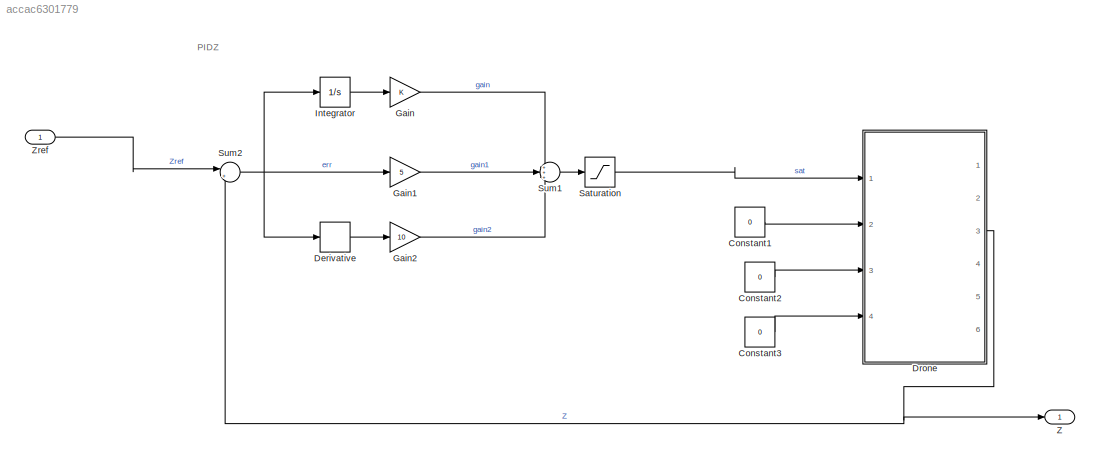
MODEL slx_accac6301779
KIND model
CONFIG AbsTol = auto
CONFIG EnableMultiTasking = on
CONFIG FixedStep = 0.01
CONFIG MaxStep = auto
CONFIG MinStep = auto
CONFIG RelTol = 1e-3
CONFIG SampleTimeConstraint = Unconstrained
CONFIG Solver = FixedStepAuto
CONFIG SolverName = FixedStepAuto
CONFIG StartTime = 0.0
CONFIG StopTime = 30.0
BLOCK [Constant] Constant1
  Value = 0
BLOCK [Constant] Constant2
  Value = 0
BLOCK [Constant] Constant3
  Value = 0
BLOCK [Derivative] Derivative
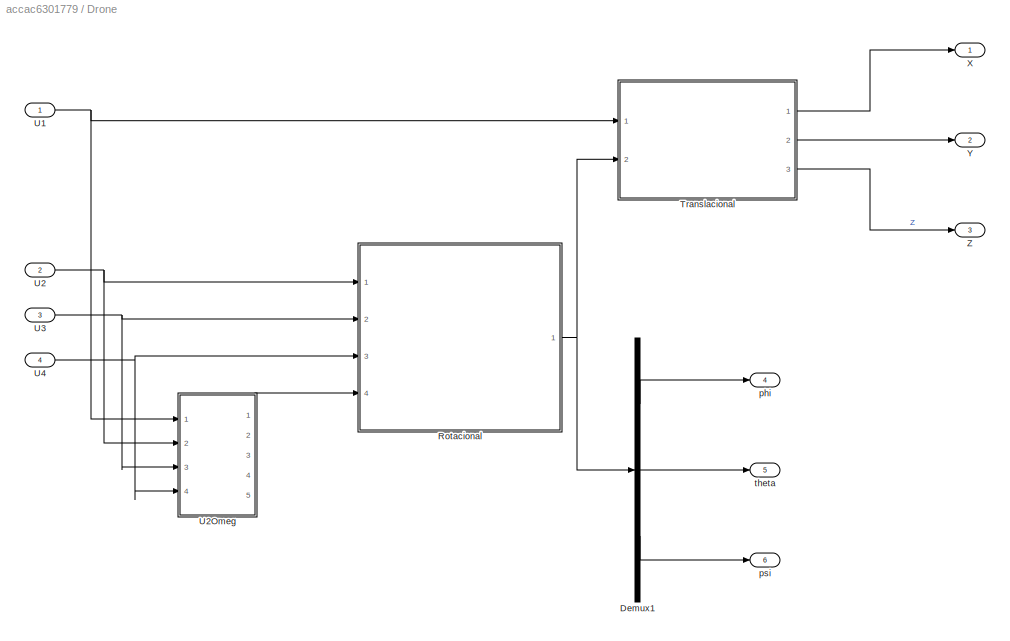
BLOCK [SubSystem] Drone
  Ports = [4, 6]
  RequestExecContextInheritance = off
BLOCK [Demux] Drone/Demux1
  DisplayOption = bar
  Outputs = 3
  Ports = [1, 3]
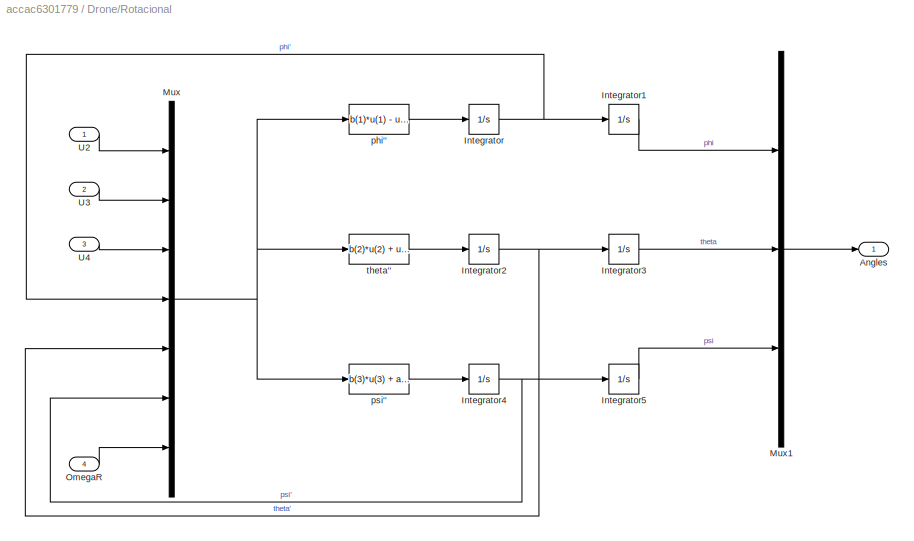
BLOCK [SubSystem] Drone/Rotacional
  Ports = [4, 1]
  RequestExecContextInheritance = off
BLOCK [Outport] Drone/Rotacional/Angles
  IconDisplay = Port number
BLOCK [Integrator] Drone/Rotacional/Integrator
  Ports = [1, 1]
BLOCK [Integrator] Drone/Rotacional/Integrator1
  Ports = [1, 1]
BLOCK [Integrator] Drone/Rotacional/Integrator2
  Ports = [1, 1]
BLOCK [Integrator] Drone/Rotacional/Integrator3
  Ports = [1, 1]
BLOCK [Integrator] Drone/Rotacional/Integrator4
  Ports = [1, 1]
BLOCK [Integrator] Drone/Rotacional/Integrator5
  Ports = [1, 1]
BLOCK [Mux] Drone/Rotacional/Mux
  DisplayOption = bar
  Inputs = 7
  Ports = [7, 1]
BLOCK [Mux] Drone/Rotacional/Mux1
  DisplayOption = bar
  Inputs = 3
  Ports = [3, 1]
BLOCK [Inport] Drone/Rotacional/OmegaR
  IconDisplay = Port number
  Port = 4
BLOCK [Inport] Drone/Rotacional/U2
  IconDisplay = Port number
BLOCK [Inport] Drone/Rotacional/U3
  IconDisplay = Port number
  Port = 2
BLOCK [Inport] Drone/Rotacional/U4
  IconDisplay = Port number
  Port = 3
BLOCK [Fcn] Drone/Rotacional/phi''
  Expr = b(1)*u(1) - u(5)*u(7)*a(2) + a(1)*u(5)*u(6)
BLOCK [Fcn] Drone/Rotacional/psi''
  Expr = b(3)*u(3) + a(5)*u(4)*u(5)
BLOCK [Fcn] Drone/Rotacional/theta''
  Expr = b(2)*u(2) + u(4)*u(7)*a(4) + a(3)*u(4)*u(6)
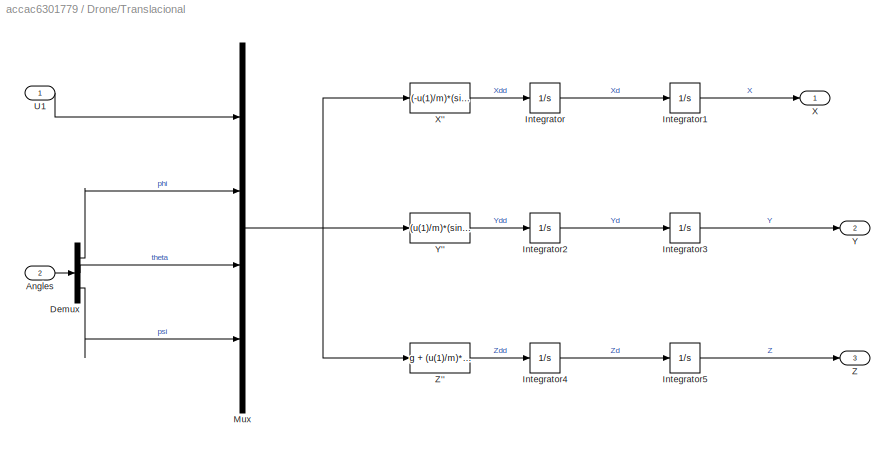
BLOCK [SubSystem] Drone/Translacional
  Ports = [2, 3]
  RequestExecContextInheritance = off
BLOCK [Inport] Drone/Translacional/Angles
  IconDisplay = Port number
  Port = 2
BLOCK [Demux] Drone/Translacional/Demux
  DisplayOption = bar
  Outputs = 3
  Ports = [1, 3]
BLOCK [Integrator] Drone/Translacional/Integrator
  Ports = [1, 1]
BLOCK [Integrator] Drone/Translacional/Integrator1
  Ports = [1, 1]
BLOCK [Integrator] Drone/Translacional/Integrator2
  Ports = [1, 1]
BLOCK [Integrator] Drone/Translacional/Integrator3
  Ports = [1, 1]
BLOCK [Integrator] Drone/Translacional/Integrator4
  Ports = [1, 1]
BLOCK [Integrator] Drone/Translacional/Integrator5
  Ports = [1, 1]
BLOCK [Mux] Drone/Translacional/Mux
  DisplayOption = bar
  Ports = [4, 1]
BLOCK [Inport] Drone/Translacional/U1
  IconDisplay = Port number
BLOCK [Outport] Drone/Translacional/X
  IconDisplay = Port number
BLOCK [Fcn] Drone/Translacional/X''
  Expr = (-u(1)/m)*(sin(u(2))*sin(u(4)) + cos(u(2))*sin(u(3))*cos(u(4)))
BLOCK [Outport] Drone/Translacional/Y
  IconDisplay = Port number
  Port = 2
BLOCK [Fcn] Drone/Translacional/Y''
  Expr = (u(1)/m)*(sin(u(2))*cos(u(4)) - cos(u(2))*sin(u(3))*sin(u(4)))
BLOCK [Outport] Drone/Translacional/Z
  IconDisplay = Port number
  Port = 3
BLOCK [Fcn] Drone/Translacional/Z''
  Expr = g + (u(1)/m)*(cos(u(2))*cos(u(3)))
BLOCK [Inport] Drone/U1
  IconDisplay = Port number
BLOCK [Inport] Drone/U2
  IconDisplay = Port number
  Port = 2
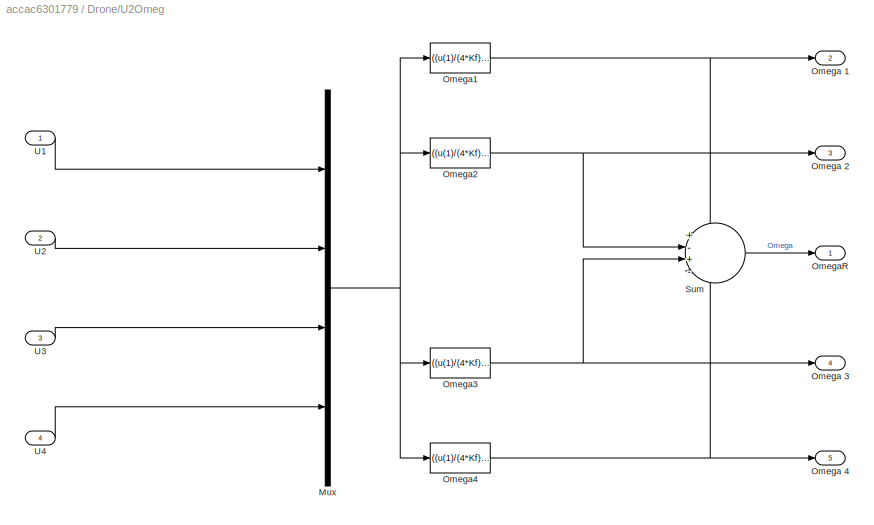
BLOCK [SubSystem] Drone/U2Omeg
  Ports = [4, 5]
  RequestExecContextInheritance = off
BLOCK [Mux] Drone/U2Omeg/Mux
  DisplayOption = bar
  Ports = [4, 1]
BLOCK [Outport] Drone/U2Omeg/Omega 1
  IconDisplay = Port number
  Port = 2
BLOCK [Outport] Drone/U2Omeg/Omega 2
  IconDisplay = Port number
  Port = 3
BLOCK [Outport] Drone/U2Omeg/Omega 3
  IconDisplay = Port number
  Port = 4
BLOCK [Outport] Drone/U2Omeg/Omega 4
  IconDisplay = Port number
  Port = 5
BLOCK [Fcn] Drone/U2Omeg/Omega1
  Expr = ((u(1)/(4*Kf)) + (u(3)/(2*Kf)) + (u(4)/(4*Km)))^(1/2)
BLOCK [Fcn] Drone/U2Omeg/Omega2
  Expr = ((u(1)/(4*Kf)) - (u(2)/(2*Kf)) - (u(4)/(4*Km)))^(1/2)
BLOCK [Fcn] Drone/U2Omeg/Omega3
  Expr = ((u(1)/(4*Kf)) - (u(3)/(2*Kf)) + (u(4)/(4*Km)))^(1/2)
BLOCK [Fcn] Drone/U2Omeg/Omega4
  Expr = ((u(1)/(4*Kf)) + (u(2)/(2*Kf)) - (u(4)/(4*Km)))^(1/2)
BLOCK [Outport] Drone/U2Omeg/OmegaR
  IconDisplay = Port number
BLOCK [Sum] Drone/U2Omeg/Sum
  IconShape = round
  InputSameDT = off
  Inputs = +-+-
  OutDataTypeStr = Inherit: Inherit via internal rule
  Ports = [4, 1]
  SaturateOnIntegerOverflow = off
BLOCK [Inport] Drone/U2Omeg/U1 
  IconDisplay = Port number
BLOCK [Inport] Drone/U2Omeg/U2 
  IconDisplay = Port number
  Port = 2
BLOCK [Inport] Drone/U2Omeg/U3 
  IconDisplay = Port number
  Port = 3
BLOCK [Inport] Drone/U2Omeg/U4 
  IconDisplay = Port number
  Port = 4
BLOCK [Inport] Drone/U3
  IconDisplay = Port number
  Port = 3
BLOCK [Inport] Drone/U4
  IconDisplay = Port number
  Port = 4
BLOCK [Outport] Drone/X
  IconDisplay = Port number
BLOCK [Outport] Drone/Y
  IconDisplay = Port number
  Port = 2
BLOCK [Outport] Drone/Z
  IconDisplay = Port number
  Port = 3
BLOCK [Outport] Drone/phi
  IconDisplay = Port number
  Port = 4
BLOCK [Outport] Drone/psi 
  IconDisplay = Port number
  Port = 6
BLOCK [Outport] Drone/theta
  IconDisplay = Port number
  Port = 5
BLOCK [Gain] Gain
  OutDataTypeStr = Inherit: Inherit via internal rule
  ParamDataTypeStr = Inherit: Inherit via internal rule
  SaturateOnIntegerOverflow = off
BLOCK [Gain] Gain1
  Gain = 5
  OutDataTypeStr = Inherit: Inherit via internal rule
  ParamDataTypeStr = Inherit: Inherit via internal rule
  SaturateOnIntegerOverflow = off
BLOCK [Gain] Gain2
  Gain = 10
  OutDataTypeStr = Inherit: Inherit via internal rule
  ParamDataTypeStr = Inherit: Inherit via internal rule
  SaturateOnIntegerOverflow = off
BLOCK [Integrator] Integrator
  Ports = [1, 1]
BLOCK [Saturate] Saturation
  InputPortMap = u0
  LowerLimit = -15
  Ports = [1, 1]
  UpperLimit = 15
BLOCK [Sum] Sum1
  IconShape = round
  InputSameDT = off
  Inputs = +++
  OutDataTypeStr = Inherit: Inherit via internal rule
  Ports = [3, 1]
  SaturateOnIntegerOverflow = off
BLOCK [Sum] Sum2
  IconShape = round
  InputSameDT = off
  Inputs = |+-
  OutDataTypeStr = Inherit: Inherit via internal rule
  Ports = [2, 1]
  SaturateOnIntegerOverflow = off
BLOCK [Outport] Z
  IconDisplay = Port number
BLOCK [Inport] Zref
  IconDisplay = Port number
ANNOTATION (root): PIDZ
LINE Constant1:1 -> Drone:2
LINE Constant2:1 -> Drone:3
LINE Constant3:1 -> Drone:4
LINE Derivative:1 -> Gain2:1
LINE Drone/Demux1:1 -> Drone/phi:1
LINE Drone/Demux1:2 -> Drone/theta:1
LINE Drone/Demux1:3 -> Drone/psi :1
LINE Drone/Rotacional/Integrator1:1 -> Drone/Rotacional/Mux1:1
NET Drone/Rotacional/Integrator2:1 -> Drone/Rotacional/Integrator3:1, Drone/Rotacional/Mux:5
LINE Drone/Rotacional/Integrator3:1 -> Drone/Rotacional/Mux1:2
NET Drone/Rotacional/Integrator4:1 -> Drone/Rotacional/Integrator5:1, Drone/Rotacional/Mux:6
LINE Drone/Rotacional/Integrator5:1 -> Drone/Rotacional/Mux1:3
NET Drone/Rotacional/Integrator:1 -> Drone/Rotacional/Integrator1:1, Drone/Rotacional/Mux:4
LINE Drone/Rotacional/Mux1:1 -> Drone/Rotacional/Angles:1
NET Drone/Rotacional/Mux:1 -> Drone/Rotacional/phi'':1, Drone/Rotacional/psi'':1, Drone/Rotacional/theta'':1
LINE Drone/Rotacional/OmegaR:1 -> Drone/Rotacional/Mux:7
LINE Drone/Rotacional/U2:1 -> Drone/Rotacional/Mux:1
LINE Drone/Rotacional/U3:1 -> Drone/Rotacional/Mux:2
LINE Drone/Rotacional/U4:1 -> Drone/Rotacional/Mux:3
LINE Drone/Rotacional/phi'':1 -> Drone/Rotacional/Integrator:1
LINE Drone/Rotacional/psi'':1 -> Drone/Rotacional/Integrator4:1
LINE Drone/Rotacional/theta'':1 -> Drone/Rotacional/Integrator2:1
NET Drone/Rotacional:1 -> Drone/Demux1:1, Drone/Translacional:2
LINE Drone/Translacional/Angles:1 -> Drone/Translacional/Demux:1
LINE Drone/Translacional/Demux:1 -> Drone/Translacional/Mux:2
LINE Drone/Translacional/Demux:2 -> Drone/Translacional/Mux:3
LINE Drone/Translacional/Demux:3 -> Drone/Translacional/Mux:4
LINE Drone/Translacional/Integrator1:1 -> Drone/Translacional/X:1
LINE Drone/Translacional/Integrator2:1 -> Drone/Translacional/Integrator3:1
LINE Drone/Translacional/Integrator3:1 -> Drone/Translacional/Y:1
LINE Drone/Translacional/Integrator4:1 -> Drone/Translacional/Integrator5:1
LINE Drone/Translacional/Integrator5:1 -> Drone/Translacional/Z:1
LINE Drone/Translacional/Integrator:1 -> Drone/Translacional/Integrator1:1
NET Drone/Translacional/Mux:1 -> Drone/Translacional/X'':1, Drone/Translacional/Y'':1, Drone/Translacional/Z'':1
LINE Drone/Translacional/U1:1 -> Drone/Translacional/Mux:1
LINE Drone/Translacional/X'':1 -> Drone/Translacional/Integrator:1
LINE Drone/Translacional/Y'':1 -> Drone/Translacional/Integrator2:1
LINE Drone/Translacional/Z'':1 -> Drone/Translacional/Integrator4:1
LINE Drone/Translacional:1 -> Drone/X:1
LINE Drone/Translacional:2 -> Drone/Y:1
LINE Drone/Translacional:3 -> Drone/Z:1
NET Drone/U1:1 -> Drone/Translacional:1, Drone/U2Omeg:1
NET Drone/U2:1 -> Drone/Rotacional:1, Drone/U2Omeg:2
NET Drone/U2Omeg/Mux:1 -> Drone/U2Omeg/Omega1:1, Drone/U2Omeg/Omega2:1, Drone/U2Omeg/Omega3:1, Drone/U2Omeg/Omega4:1
NET Drone/U2Omeg/Omega1:1 -> Drone/U2Omeg/Omega 1:1, Drone/U2Omeg/Sum:1
NET Drone/U2Omeg/Omega2:1 -> Drone/U2Omeg/Omega 2:1, Drone/U2Omeg/Sum:2
NET Drone/U2Omeg/Omega3:1 -> Drone/U2Omeg/Omega 3:1, Drone/U2Omeg/Sum:3
NET Drone/U2Omeg/Omega4:1 -> Drone/U2Omeg/Omega 4:1, Drone/U2Omeg/Sum:4
LINE Drone/U2Omeg/Sum:1 -> Drone/U2Omeg/OmegaR:1
LINE Drone/U2Omeg/U1 :1 -> Drone/U2Omeg/Mux:1
LINE Drone/U2Omeg/U2 :1 -> Drone/U2Omeg/Mux:2
LINE Drone/U2Omeg/U3 :1 -> Drone/U2Omeg/Mux:3
LINE Drone/U2Omeg/U4 :1 -> Drone/U2Omeg/Mux:4
LINE Drone/U2Omeg:1 -> Drone/Rotacional:4
NET Drone/U3:1 -> Drone/Rotacional:2, Drone/U2Omeg:3
NET Drone/U4:1 -> Drone/Rotacional:3, Drone/U2Omeg:4
NET Drone:3 -> Sum2:2, Z:1
LINE Gain1:1 -> Sum1:2
LINE Gain2:1 -> Sum1:3
LINE Gain:1 -> Sum1:1
LINE Integrator:1 -> Gain:1
LINE Saturation:1 -> Drone:1
LINE Sum1:1 -> Saturation:1
NET Sum2:1 -> Derivative:1, Gain1:1, Integrator:1
LINE Zref:1 -> Sum2:1
note: NET lines group one-source signal fan-out (src -> all destinations, sorted); 1:1 wires keep LINE
